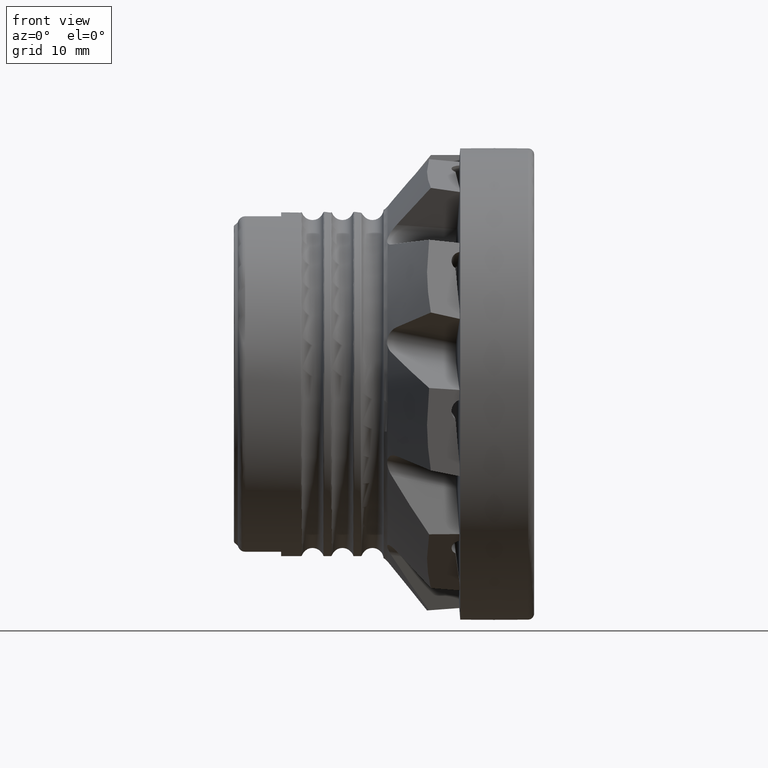
[diagram: clean part render]
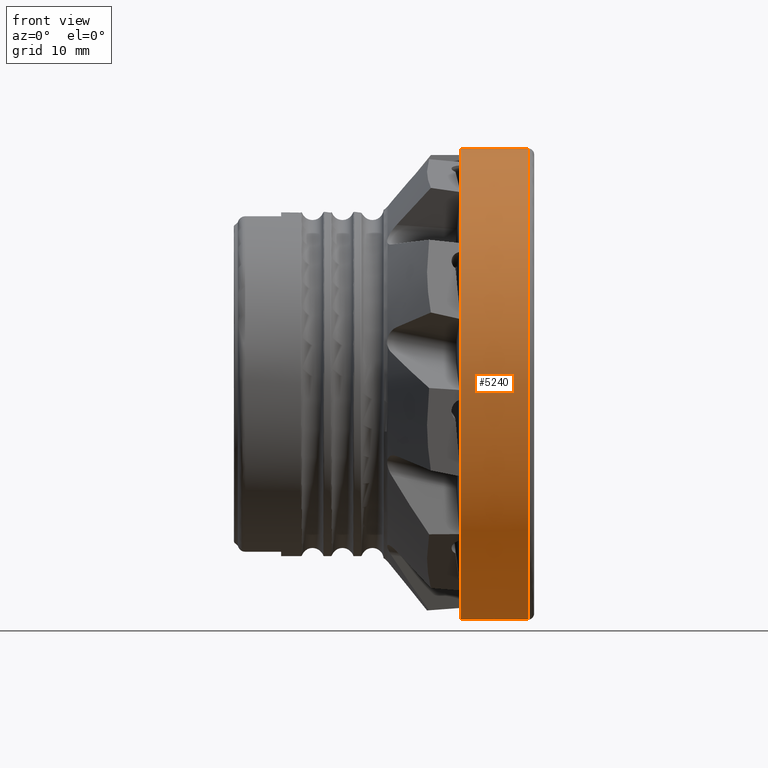
[diagram: same view with one face highlighted and labeled with its STEP entity id]
A machine part, front view. The second image highlights one B-rep face of the part: STEP entity #5240.
In plain terms, the highlighted conical surface has half-angle 0 deg.
Its self-contained STEP definition (entity closure, byte-faithful):
#162 = CARTESIAN_POINT ( 'NONE',  ( -9.169581380455074500, -1.875628933582268100E-015, 0.0000000000000000000 ) ) ;
#922 = DIRECTION ( 'NONE',  ( -1.101411730778925200E-016, 1.000000000000000000, 0.0000000000000000000 ) ) ;
#1252 = ORIENTED_EDGE ( 'NONE', *, *, #8287, .T. ) ;
#1471 = ORIENTED_EDGE ( 'NONE', *, *, #7813, .F. ) ;
#1746 = CARTESIAN_POINT ( 'NONE',  ( -9.169581380455078100, 31.50000000000000000, 0.0000000000000000000 ) ) ;
#1942 = AXIS2_PLACEMENT_3D ( 'NONE', #162, #6962, #922 ) ;
#2324 = CIRCLE ( 'NONE', #3405, 31.50001691838174300 ) ;
#2330 = CARTESIAN_POINT ( 'NONE',  ( -0.1002259391609354500, -7.487941060496523400E-016, 0.0000000000000000000 ) ) ;
#2808 = VERTEX_POINT ( 'NONE', #1746 ) ;
#2954 = DIRECTION ( 'NONE',  ( 1.000000000000000000, 1.242464070160893000E-016, -0.0000000000000000000 ) ) ;
#3005 = DIRECTION ( 'NONE',  ( -1.243389918885509300E-016, 1.000000000000000000, 0.0000000000000000000 ) ) ;
#3032 = VERTEX_POINT ( 'NONE', #4432 ) ;
#3079 = AXIS2_PLACEMENT_3D ( 'NONE', #7006, #2954, #7695 ) ;
#3405 = AXIS2_PLACEMENT_3D ( 'NONE', #2330, #7060, #3005 ) ;
#3555 = CIRCLE ( 'NONE', #3079, 31.50000000000000000 ) ;
#4432 = CARTESIAN_POINT ( 'NONE',  ( -0.1002259391609393600, 31.50001691838174300, 0.0000000000000000000 ) ) ;
#5240 = ADVANCED_FACE ( 'NONE', ( #8099, #6708 ), #7244, .T. ) ;
#6543 = EDGE_LOOP ( 'NONE', ( #1471 ) ) ;
#6708 = FACE_BOUND ( 'NONE', #6981, .T. ) ;
#6962 = DIRECTION ( 'NONE',  ( 1.000000000000000000, 1.242464070160893000E-016, -0.0000000000000000000 ) ) ;
#6981 = EDGE_LOOP ( 'NONE', ( #1252 ) ) ;
#7006 = CARTESIAN_POINT ( 'NONE',  ( -9.169581380455074500, -1.875628933582268100E-015, 0.0000000000000000000 ) ) ;
#7060 = DIRECTION ( 'NONE',  ( 1.000000000000000000, 1.242464070160893000E-016, -0.0000000000000000000 ) ) ;
#7244 = CONICAL_SURFACE ( 'NONE', #1942, 31.50000000000000000, 1.865444777598763900E-006 ) ;
#7695 = DIRECTION ( 'NONE',  ( -1.101411730778925200E-016, 1.000000000000000000, 0.0000000000000000000 ) ) ;
#7813 = EDGE_CURVE ( 'NONE', #3032, #3032, #2324, .T. ) ;
#8099 = FACE_OUTER_BOUND ( 'NONE', #6543, .T. ) ;
#8287 = EDGE_CURVE ( 'NONE', #2808, #2808, #3555, .T. ) ;